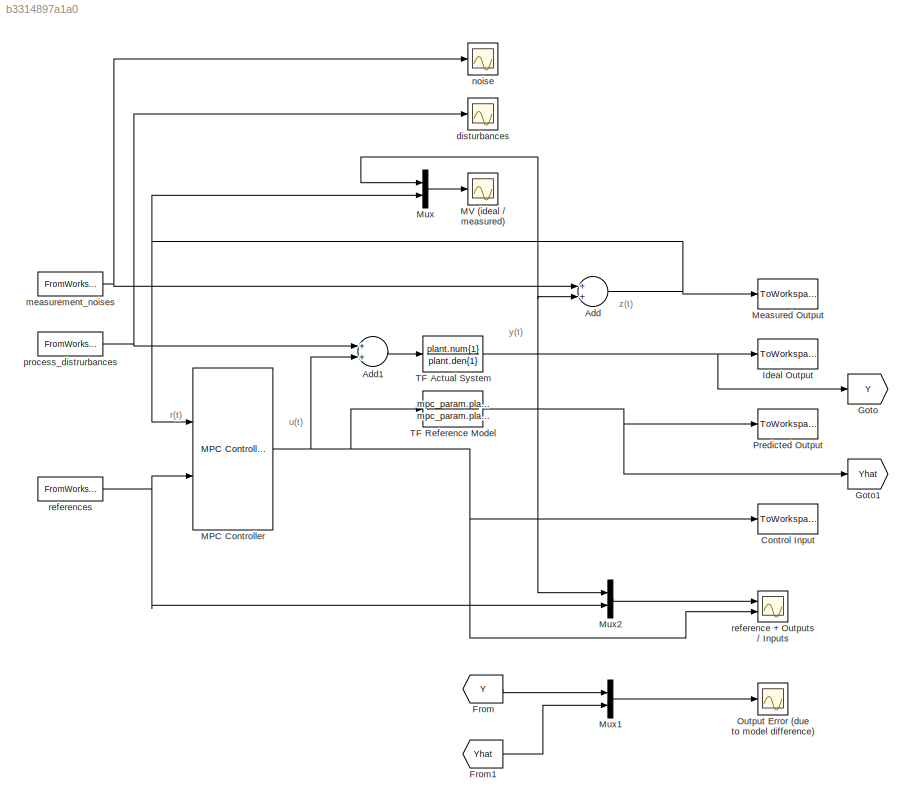
MODEL slx_b3314897a1a0
KIND model
CONFIG AbsTol = auto
CONFIG FixedStep = auto
CONFIG MaxStep = auto
CONFIG MinStep = auto
CONFIG RelTol = 1e-3
CONFIG SampleTimeConstraint = Unconstrained
CONFIG Solver = ode45
CONFIG SolverMode = SingleTasking
CONFIG SolverName = ode45
CONFIG StartTime = 0.0
CONFIG StopTime = simu.time
BLOCK [Sum] Add
  InputSameDT = off
  OutDataTypeStr = Inherit: Inherit via internal rule
  Ports = [2, 1]
  SaturateOnIntegerOverflow = off
BLOCK [Sum] Add1
  InputSameDT = off
  OutDataTypeStr = Inherit: Inherit via internal rule
  Ports = [2, 1]
  SaturateOnIntegerOverflow = off
BLOCK [ToWorkspace] Control Input
  MaxDataPoints = Inf
  Ports = [1]
  SampleTime = simu.samlping_time
  VariableName = u
BLOCK [From] From
  GotoTag = Y
BLOCK [From] From1
  GotoTag = Yhat
BLOCK [Goto] Goto
  GotoTag = Y
BLOCK [Goto] Goto1
  GotoTag = Yhat
BLOCK [ToWorkspace] Ideal Output
  MaxDataPoints = Inf
  Ports = [1]
  SampleTime = simu.samlping_time
  VariableName = y
BLOCK [Reference] MPC Controller  REF=mpclib/MPC Controller  (lib defined in mdl_ae329e0e0455)
  BlockDataType = double
  Ports = [2, 1]
  SampleTimeInherited = off
  SourceBlock = mpclib/MPC Controller
  SourceType = MPC
  cost_outport = off
  duwt_inport = off
  enable_value = 0
  from_project = off
  is_designfromscratch = 0
  is_multiple = 0
  lims_inport = off
  md_from_ws = off
  md_inport = off
  md_preview = on
  md_signal_name = []
  mpcobj = mpcobj
  mv_inport = off
  n_md = 0
  n_mo = 1
  n_mv = 1
  n_ts = 0.01
  project_file = MPCtask.mat
  ref_from_ws = off
  ref_preview = on
  ref_signal_name = []
  return_qpstatus = off
  return_sequence = off
  return_state = off
  return_u0 = off
  rhoeps_inport = off
  state_inport = off
  switch_inport = off
  uref_inport = off
  uwt_inport = off
  x0 = []
  ywt_inport = off
BLOCK [Scope] MV (ideal // measured)
  DataFormat = Structure
  Floating = off
  LimitDataPoints = off
  NumInputPorts = 1
  Ports = [1]
  SaveName = ScopeData1
  TimeRange = 10
  YMax = 1.75
  YMin = -1.5
  ZoomMode = xonly
BLOCK [ToWorkspace] Measured Output
  MaxDataPoints = Inf
  Ports = [1]
  SampleTime = simu.samlping_time
  VariableName = z
BLOCK [Mux] Mux
  DisplayOption = bar
  Inputs = 2
  Ports = [2, 1]
BLOCK [Mux] Mux1
  DisplayOption = bar
  Inputs = 2
  Ports = [2, 1]
BLOCK [Mux] Mux2
  DisplayOption = bar
  Inputs = 2
  Ports = [2, 1]
BLOCK [Scope] Output Error (due to model difference)
  DataFormat = Structure
  Floating = off
  LimitDataPoints = off
  NumInputPorts = 1
  Ports = [1]
  SampleInput = on
  SampleTime = simu.samlping_time
  SaveName = ScopeData2
  TimeRange = 10
  YMax = -29.6
  YMin = -29.95
  ZoomMode = xonly
BLOCK [ToWorkspace] Predicted Output
  MaxDataPoints = Inf
  Ports = [1]
  SampleTime = simu.samlping_time
  VariableName = y_hat
BLOCK [TransferFcn] TF Actual System
  Denominator = plant.den{1}
  Numerator = plant.num{1}
BLOCK [TransferFcn] TF Reference Model
  Denominator = mpc_param.plant_ref.den{1}
  Numerator = mpc_param.plant_ref.num{1}
BLOCK [Scope] disturbances
  DataFormat = Structure
  Floating = off
  LimitDataPoints = off
  NumInputPorts = 1
  Ports = [1]
  SampleInput = on
  SampleTime = simu.samlping_time
  SaveName = ScopeData4
  TimeRange = 10
  YMax = -29.6
  YMin = -29.95
  ZoomMode = xonly
BLOCK [FromWorkspace] measurement_noises
  SampleTime = 0
  VariableName = noise_input
  ZeroCross = on
BLOCK [Scope] noise
  DataFormat = Structure
  Floating = off
  LimitDataPoints = off
  NumInputPorts = 1
  Ports = [1]
  SampleInput = on
  SampleTime = simu.samlping_time
  SaveName = ScopeData3
  TimeRange = 10
  YMax = -29.6
  YMin = -29.95
  ZoomMode = xonly
BLOCK [FromWorkspace] process_distrurbances
  SampleTime = 0
  VariableName = d_input
  ZeroCross = on
BLOCK [Scope] reference + Outputs // Inputs
  DataFormat = Structure
  Floating = off
  LimitDataPoints = off
  NumInputPorts = 2
  Ports = [2]
  SampleInput = on
  SampleTime = simu.samlping_time
  TimeRange = 10
  YMax = 4.5~1.5
  YMin = -0.5~-1
  ZoomMode = xonly
BLOCK [FromWorkspace] references
  SampleTime = 0
  VariableName = ref_input
  ZeroCross = on
ANNOTATION (root): y(t)
ANNOTATION (root): z(t)
ANNOTATION (root): r(t)
ANNOTATION (root): u(t)
LINE Add1:1 -> TF Actual System:1
NET Add:1 -> MPC Controller:1, Measured Output:1, Mux:2
LINE From1:1 -> Mux1:2
LINE From:1 -> Mux1:1
NET MPC Controller:1 -> Add1:2, Control Input:1, TF Reference Model:1, reference + Outputs // Inputs:2
LINE Mux1:1 -> Output Error (due to model difference):1
LINE Mux2:1 -> reference + Outputs // Inputs:1
LINE Mux:1 -> MV (ideal // measured):1
NET TF Actual System:1 -> Add:2, Goto:1, Ideal Output:1, Mux2:1, Mux:1
NET TF Reference Model:1 -> Goto1:1, Predicted Output:1
NET measurement_noises:1 -> Add:1, noise:1
NET process_distrurbances:1 -> Add1:1, disturbances:1
NET references:1 -> MPC Controller:2, Mux2:2
note: NET lines group one-source signal fan-out (src -> all destinations, sorted); 1:1 wires keep LINE
